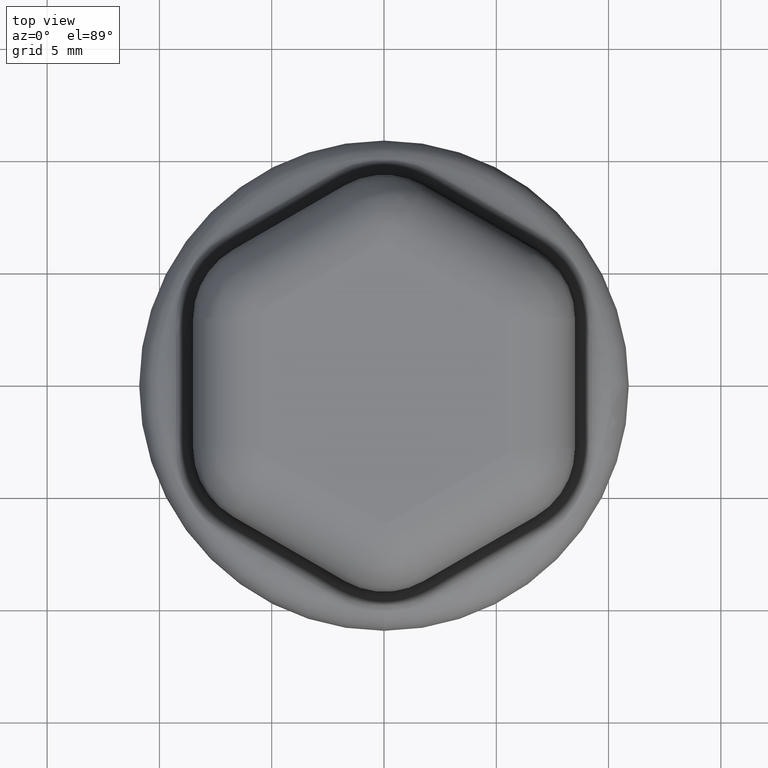
[diagram: clean part render]
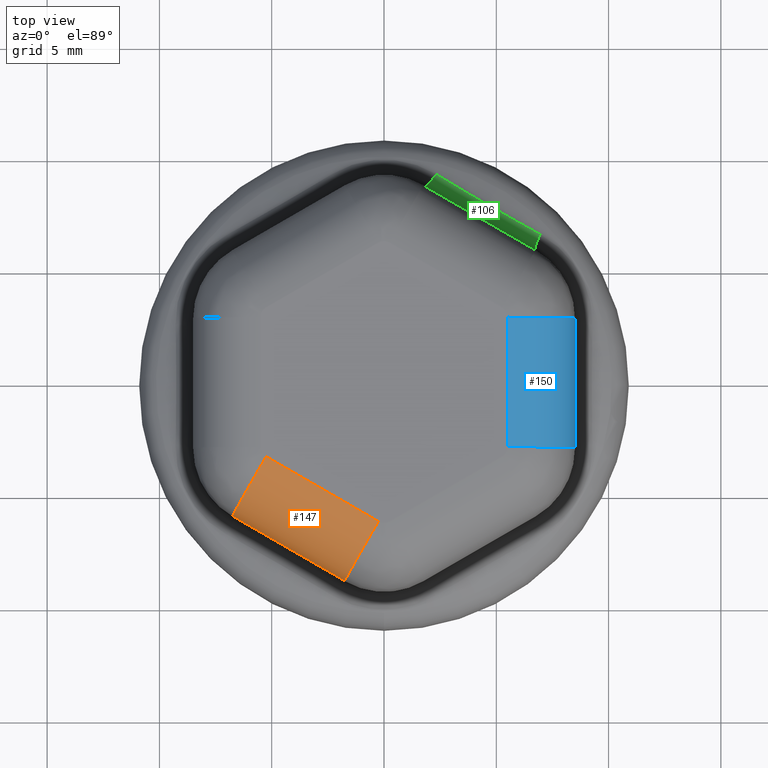
[diagram: same view with three faces highlighted in distinct colors, each labeled with its STEP entity id]
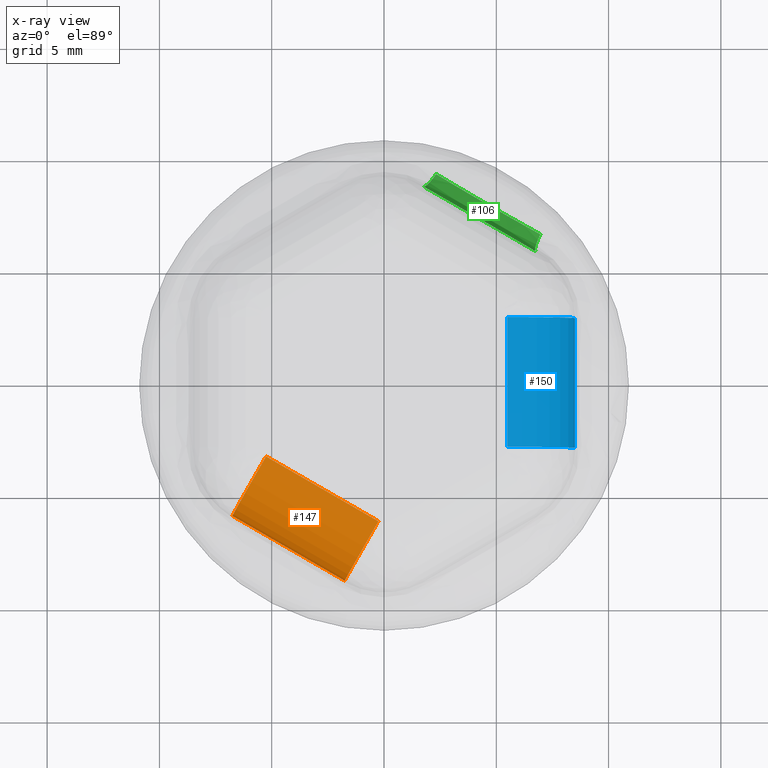
[diagram: x-ray of the same camera — body ghosted, the three highlighted faces saturated]
A machine part, top view with three faces highlighted in distinct colors.
The next image is the same camera in x-ray (body ghosted, the three faces saturated) — at least one of them is partly hidden behind the body in this view.
Their STEP definitions:

[orange] entity #147 — the highlighted cylindrical surface (partial cylindrical patch) has radius 3 mm, axis along (-0.866, 0.5, 0).
#147 = ADVANCED_FACE( '', ( #306 ), #307, .T. );
#306 = FACE_OUTER_BOUND( '', #2748, .T. );
#307 = CYLINDRICAL_SURFACE( '', #2749, 3.00000000000000 );
#2748 = EDGE_LOOP( '', ( #3304, #3305, #3306, #3307 ) );
#2749 = AXIS2_PLACEMENT_3D( '', #3308, #3309, #3310 );
#3304 = ORIENTED_EDGE( '', *, *, #3480, .F. );
#3305 = ORIENTED_EDGE( '', *, *, #3484, .T. );
#3306 = ORIENTED_EDGE( '', *, *, #3349, .F. );
#3307 = ORIENTED_EDGE( '', *, *, #3488, .T. );
#3308 = CARTESIAN_POINT( '', ( 9.99999999999999, -12.1243556529821, 7.50000000000000 ) );
#3309 = DIRECTION( '', ( -0.866025403784439, 0.500000000000000, 0.000000000000000 ) );
#3310 = DIRECTION( '', ( 0.500000000000000, 0.866025403784439, 0.000000000000000 ) );
#3349 = EDGE_CURVE( '', #3521, #3524, #3525, .T. );
#3480 = EDGE_CURVE( '', #3726, #3738, #3740, .F. );
#3484 = EDGE_CURVE( '', #3726, #3524, #3745, .T. );
#3488 = EDGE_CURVE( '', #3521, #3738, #3749, .T. );
#3521 = VERTEX_POINT( '', #3795 );
#3524 = VERTEX_POINT( '', #3798 );
#3525 = LINE( '', #3799, #3800 );
#3726 = VERTEX_POINT( '', #5257 );
#3738 = VERTEX_POINT( '', #5295 );
#3740 = LINE( '', #5298, #5299 );
#3745 = CIRCLE( '', #5339, 3.00000000000000 );
#3749 = CIRCLE( '', #5343, 3.00000000000000 );
#3795 = CARTESIAN_POINT( '', ( -5.25000000000000, -3.31976404784035, 10.5000000000000 ) );
#3798 = CARTESIAN_POINT( '', ( -0.250000000000004, -6.20651539378848, 10.5000000000000 ) );
#3799 = CARTESIAN_POINT( '', ( 9.99999999999999, -12.1243556529821, 10.5000000000000 ) );
#3800 = VECTOR( '', #5398, 1000.00000000000 );
#5257 = CARTESIAN_POINT( '', ( -1.75000000000000, -8.80459160514179, 7.50000000000000 ) );
#5295 = CARTESIAN_POINT( '', ( -6.75000000000000, -5.91784025919367, 7.50000000000000 ) );
#5298 = CARTESIAN_POINT( '', ( -8.50000000000000, -4.90747728811182, 7.50000000000000 ) );
#5299 = VECTOR( '', #5572, 1000.00000000000 );
#5339 = AXIS2_PLACEMENT_3D( '', #5575, #5576, #5577 );
#5343 = AXIS2_PLACEMENT_3D( '', #5587, #5588, #5589 );
#5398 = DIRECTION( '', ( 0.866025403784439, -0.500000000000000, 0.000000000000000 ) );
#5572 = DIRECTION( '', ( 0.866025403784439, -0.500000000000000, 0.000000000000000 ) );
#5575 = CARTESIAN_POINT( '', ( -0.250000000000003, -6.20651539378848, 7.50000000000000 ) );
#5576 = DIRECTION( '', ( -0.866025403784439, 0.500000000000000, 1.11548880993757E-017 ) );
#5577 = DIRECTION( '', ( -0.500000000000000, -0.866025403784439, 0.000000000000000 ) );
#5587 = CARTESIAN_POINT( '', ( -5.25000000000000, -3.31976404784035, 7.50000000000000 ) );
#5588 = DIRECTION( '', ( 0.866025403784439, -0.500000000000000, 0.000000000000000 ) );
#5589 = DIRECTION( '', ( 0.500000000000000, 0.866025403784438, 0.000000000000000 ) );

[blue] entity #150 — the highlighted cylindrical surface (partial cylindrical patch) has radius 3 mm, axis along (-0, -1, 0).
#150 = ADVANCED_FACE( '', ( #312 ), #313, .T. );
#312 = FACE_OUTER_BOUND( '', #2798, .T. );
#313 = CYLINDRICAL_SURFACE( '', #2799, 3.00000000000000 );
#2798 = EDGE_LOOP( '', ( #3319, #3320, #3321, #3322 ) );
#2799 = AXIS2_PLACEMENT_3D( '', #3323, #3324, #3325 );
#3319 = ORIENTED_EDGE( '', *, *, #3448, .F. );
#3320 = ORIENTED_EDGE( '', *, *, #3518, .T. );
#3321 = ORIENTED_EDGE( '', *, *, #3353, .F. );
#3322 = ORIENTED_EDGE( '', *, *, #3517, .T. );
#3323 = CARTESIAN_POINT( '', ( 5.49999999999999, -14.7224318643355, 7.50000000000000 ) );
#3324 = DIRECTION( '', ( -3.88578058618805E-016, -1.00000000000000, 0.000000000000000 ) );
#3325 = DIRECTION( '', ( -1.00000000000000, 3.88578058618805E-016, 0.000000000000000 ) );
#3353 = EDGE_CURVE( '', #3530, #3532, #3533, .T. );
#3448 = EDGE_CURVE( '', #3682, #3690, #3692, .F. );
#3517 = EDGE_CURVE( '', #3530, #3690, #3791, .T. );
#3518 = EDGE_CURVE( '', #3682, #3532, #3792, .T. );
#3530 = VERTEX_POINT( '', #3806 );
#3532 = VERTEX_POINT( '', #3808 );
#3533 = LINE( '', #3809, #3810 );
#3682 = VERTEX_POINT( '', #5033 );
#3690 = VERTEX_POINT( '', #5055 );
#3692 = LINE( '', #5058, #5059 );
#3791 = CIRCLE( '', #5391, 3.00000000000000 );
#3792 = CIRCLE( '', #5392, 3.00000000000000 );
#3806 = CARTESIAN_POINT( '', ( 5.50000000000000, -2.88675134594813, 10.5000000000000 ) );
#3808 = CARTESIAN_POINT( '', ( 5.50000000000000, 2.88675134594813, 10.5000000000000 ) );
#3809 = CARTESIAN_POINT( '', ( 5.49999999999999, -14.7224318643355, 10.5000000000000 ) );
#3810 = VECTOR( '', #5406, 1000.00000000000 );
#5033 = CARTESIAN_POINT( '', ( 8.50000000000000, 2.88675134594813, 7.50000000000000 ) );
#5055 = CARTESIAN_POINT( '', ( 8.49999999999999, -2.88675134594813, 7.50000000000000 ) );
#5058 = CARTESIAN_POINT( '', ( 8.49999999999999, -4.90747728811182, 7.50000000000000 ) );
#5059 = VECTOR( '', #5524, 1000.00000000000 );
#5391 = AXIS2_PLACEMENT_3D( '', #5662, #5663, #5664 );
#5392 = AXIS2_PLACEMENT_3D( '', #5665, #5666, #5667 );
#5406 = DIRECTION( '', ( 3.88578058618805E-016, 1.00000000000000, 0.000000000000000 ) );
#5524 = DIRECTION( '', ( 3.88578058618805E-016, 1.00000000000000, 0.000000000000000 ) );
#5662 = CARTESIAN_POINT( '', ( 5.50000000000000, -2.88675134594813, 7.50000000000000 ) );
#5663 = DIRECTION( '', ( 4.33680868994202E-016, 1.00000000000000, 0.000000000000000 ) );
#5664 = DIRECTION( '', ( -1.00000000000000, 4.33680868994202E-016, 0.000000000000000 ) );
#5665 = CARTESIAN_POINT( '', ( 5.50000000000000, 2.88675134594813, 7.50000000000000 ) );
#5666 = DIRECTION( '', ( -4.33680868994202E-016, -1.00000000000000, 1.25386064087711E-031 ) );
#5667 = DIRECTION( '', ( 1.00000000000000, -4.33680868994202E-016, 0.000000000000000 ) );

[green] entity #106 — the highlighted face is a freeform B-spline surface patch.
#106 = ADVANCED_FACE( '', ( #220 ), #221, .F. );
#220 = FACE_OUTER_BOUND( '', #1598, .T. );
#221 = ( B_SPLINE_SURFACE( 3, 2, ( ( #1600, #1601, #1602 ), ( #1603, #1604, #1605 ), ( #1606, #1607, #1608 ), ( #1609, #1610, #1611 ), ( #1612, #1613, #1614 ), ( #1615, #1616, #1617 ), ( #1618, #1619, #1620 ), ( #1621, #1622, #1623 ), ( #1624, #1625, #1626 ), ( #1627, #1628, #1629 ), ( #1630, #1631, #1632 ), ( #1633, #1634, #1635 ), ( #1636, #1637, #1638 ), ( #1639, #1640, #1641 ), ( #1642, #1643, #1644 ), ( #1645, #1646, #1647 ), ( #1648, #1649, #1650 ), ( #1651, #1652, #1653 ) ), .UNSPECIFIED., .F., .F., .F. )B_SPLINE_SURFACE_WITH_KNOTS( ( 4, 2, 2, 2, 2, 2, 2, 2, 4 ), ( 3, 3 ), ( -1.73472347597681E-018, 0.000721687836487030, 0.00144337567297406, 0.00216506350946109, 0.00288675134594813, 0.00360843918243516, 0.00433012701892219, 0.00505181485540922, 0.00577350269189625 ), ( 0.000000000000000, 1.00000000000000 ), .UNSPECIFIED. )RATIONAL_B_SPLINE_SURFACE( ( ( 1.00000000000000, 0.860344251278306, 1.00000000000000 ), ( 1.00000000000000, 0.861239132741734, 1.00000000000000 ), ( 1.00000000000000, 0.862046268298062, 1.00000000000000 ), ( 1.00000000000000, 0.863455268893499, 1.00000000000000 ), ( 1.00000000000000, 0.864056970409328, 1.00000000000000 ), ( 1.00000000000000, 0.865030453236678, 1.00000000000000 ), ( 1.00000000000000, 0.865402157081139, 1.00000000000000 ), ( 1.00000000000000, 0.865899654246989, 1.00000000000000 ), ( 1.00000000000000, 0.866025403784491, 1.00000000000000 ), ( 1.00000000000000, 0.866025403784385, 1.00000000000000 ), ( 1.00000000000000, 0.865899654247015, 1.00000000000000 ), ( 1.00000000000000, 0.865402157081112, 1.00000000000000 ), ( 1.00000000000000, 0.865030453236718, 1.00000000000000 ), ( 1.00000000000000, 0.864056970409288, 1.00000000000000 ), ( 1.00000000000000, 0.863455268893526, 1.00000000000000 ), ( 1.00000000000000, 0.862046268298035, 1.00000000000000 ), ( 1.00000000000000, 0.861239132741754, 1.00000000000000 ), ( 1.00000000000000, 0.860344251278307, 1.00000000000000 ) ) )BOUNDED_SURFACE(  )REPRESENTATION_ITEM( '' )GEOMETRIC_REPRESENTATION_ITEM(  )SURFACE(  ) );
#1598 = EDGE_LOOP( '', ( #3042, #3043, #3044, #3045 ) );
#1600 = CARTESIAN_POINT( '', ( 6.75000000000000, 5.91784025919367, 4.68194201974692 ) );
#1601 = CARTESIAN_POINT( '', ( 6.62831257506006, 5.98809652673973, 3.80444151934666 ) );
#1602 = CARTESIAN_POINT( '', ( 6.95956748090783, 6.69684693090917, 3.38290391407027 ) );
#1603 = CARTESIAN_POINT( '', ( 6.54166646876625, 6.03812167953269, 4.72046290361904 ) );
#1604 = CARTESIAN_POINT( '', ( 6.42959244386703, 6.10282764797644, 3.84478777944290 ) );
#1605 = CARTESIAN_POINT( '', ( 6.76278092102058, 6.80512802303914, 3.42142494317130 ) );
#1606 = CARTESIAN_POINT( '', ( 6.33333333333333, 6.15840287135601, 4.75453521217578 ) );
#1607 = CARTESIAN_POINT( '', ( 6.23105970196685, 6.21745057995642, 3.88049809799550 ) );
#1608 = CARTESIAN_POINT( '', ( 6.56662040356177, 6.91356160559172, 3.45549710641462 ) );
#1609 = CARTESIAN_POINT( '', ( 5.91666666666667, 6.39896548351835, 4.81331401323318 ) );
#1610 = CARTESIAN_POINT( '', ( 5.83429238162701, 6.44652429916033, 3.94212710999923 ) );
#1611 = CARTESIAN_POINT( '', ( 6.17548168049871, 7.13096361565866, 3.51427590764102 ) );
#1612 = CARTESIAN_POINT( '', ( 5.70833333333334, 6.51924678959952, 4.83801954244026 ) );
#1613 = CARTESIAN_POINT( '', ( 5.63605819966609, 6.56097485747782, 3.96804463561771 ) );
#1614 = CARTESIAN_POINT( '', ( 5.98050444803590, 7.23993212550030, 3.53898143670323 ) );
#1615 = CARTESIAN_POINT( '', ( 5.29166666666666, 6.75980940176187, 4.87770208193355 ) );
#1616 = CARTESIAN_POINT( '', ( 5.23979945601670, 6.78975494979294, 4.00968416831522 ) );
#1617 = CARTESIAN_POINT( '', ( 5.59161119076650, 7.45862884864298, 3.57866397631727 ) );
#1618 = CARTESIAN_POINT( '', ( 5.08333333333336, 6.88009070784303, 4.89267837564956 ) );
#1619 = CARTESIAN_POINT( '', ( 5.04177473605776, 6.90408457516719, 4.02540534637940 ) );
#1620 = CARTESIAN_POINT( '', ( 5.39769496191075, 7.56835768970402, 3.59364026994141 ) );
#1621 = CARTESIAN_POINT( '', ( 4.66666666666665, 7.12065332000540, 4.91267325751608 ) );
#1622 = CARTESIAN_POINT( '', ( 4.64583344240242, 7.13268138764248, 4.04639651450284 ) );
#1623 = CARTESIAN_POINT( '', ( 5.01074375772933, 7.78878037945622, 3.61363515187091 ) );
#1624 = CARTESIAN_POINT( '', ( 4.45833333333328, 7.24093462608659, 4.91769145362398 ) );
#1625 = CARTESIAN_POINT( '', ( 4.44791666670149, 7.24694869137065, 4.05166604983964 ) );
#1626 = CARTESIAN_POINT( '', ( 4.81770833341145, 7.89947477683585, 3.61865334794733 ) );
#1627 = CARTESIAN_POINT( '', ( 4.04166666666672, 7.48149723824887, 4.91769145362398 ) );
#1628 = CARTESIAN_POINT( '', ( 4.05208333329851, 7.47548317296480, 4.05166604983944 ) );
#1629 = CARTESIAN_POINT( '', ( 4.43229166658855, 8.12199519317626, 3.61865334794731 ) );
#1630 = CARTESIAN_POINT( '', ( 3.83333333333328, 7.60177854433010, 4.91267325751608 ) );
#1631 = CARTESIAN_POINT( '', ( 3.85416655759753, 7.58975047669297, 4.04639651450284 ) );
#1632 = CARTESIAN_POINT( '', ( 4.23990979424220, 8.23382157577596, 3.61363515187094 ) );
#1633 = CARTESIAN_POINT( '', ( 3.41666666666673, 7.84234115649238, 4.89267837564956 ) );
#1634 = CARTESIAN_POINT( '', ( 3.45822526394229, 7.81834728916827, 4.02540534637940 ) );
#1635 = CARTESIAN_POINT( '', ( 3.85554254325564, 8.45871980374605, 3.59364026994138 ) );
#1636 = CARTESIAN_POINT( '', ( 3.20833333333339, 7.96262246257356, 4.87770208193366 ) );
#1637 = CARTESIAN_POINT( '', ( 3.26020054398350, 7.93267691454270, 4.00968416831523 ) );
#1638 = CARTESIAN_POINT( '', ( 3.66355646494096, 8.57179176361030, 3.57866397631746 ) );
#1639 = CARTESIAN_POINT( '', ( 2.79166666666662, 8.20318507473596, 4.83801954244015 ) );
#1640 = CARTESIAN_POINT( '', ( 2.86394180033371, 8.16145700685745, 3.96804463561770 ) );
#1641 = CARTESIAN_POINT( '', ( 3.27971291834048, 8.79923484219539, 3.53898143670303 ) );
#1642 = CARTESIAN_POINT( '', ( 2.58333333333329, 8.32346638081713, 4.81331401323308 ) );
#1643 = CARTESIAN_POINT( '', ( 2.66570761837304, 8.27590756517521, 3.94212710999934 ) );
#1644 = CARTESIAN_POINT( '', ( 3.08785480437366, 8.91360582374679, 3.51427590764092 ) );
#1645 = CARTESIAN_POINT( '', ( 2.16666666666672, 8.56402899297942, 4.75453521217588 ) );
#1646 = CARTESIAN_POINT( '', ( 2.26894029803311, 8.50498128437896, 3.88049809799539 ) );
#1647 = CARTESIAN_POINT( '', ( 2.70400977929020, 9.14364088928942, 3.45549710641472 ) );
#1648 = CARTESIAN_POINT( '', ( 1.95833353123366, 8.68431018480281, 4.72046290361935 ) );
#1649 = CARTESIAN_POINT( '', ( 2.07040755613237, 8.61960421635776, 3.84478777944238 ) );
#1650 = CARTESIAN_POINT( '', ( 2.51202328344688, 9.25930408935200, 3.42142494317138 ) );
#1651 = CARTESIAN_POINT( '', ( 1.75000000000000, 8.80459160514179, 4.68194201974692 ) );
#1652 = CARTESIAN_POINT( '', ( 1.87168742493994, 8.73433533759573, 3.80444151934667 ) );
#1653 = CARTESIAN_POINT( '', ( 2.31985582696928, 9.37558570327284, 3.38290391407027 ) );
#3042 = ORIENTED_EDGE( '', *, *, #3445, .T. );
#3043 = ORIENTED_EDGE( '', *, *, #3446, .F. );
#3044 = ORIENTED_EDGE( '', *, *, #3425, .F. );
#3045 = ORIENTED_EDGE( '', *, *, #3432, .F. );
#3425 = EDGE_CURVE( '', #3650, #3651, #3652, .T. );
#3432 = EDGE_CURVE( '', #3663, #3650, #3664, .T. );
#3445 = EDGE_CURVE( '', #3663, #3687, #3688, .T. );
#3446 = EDGE_CURVE( '', #3651, #3687, #3689, .T. );
#3650 = VERTEX_POINT( '', #4638 );
#3651 = VERTEX_POINT( '', #4639 );
#3652 = CIRCLE( '', #4640, 1.50000000000000 );
#3663 = VERTEX_POINT( '', #4749 );
#3664 = B_SPLINE_CURVE_WITH_KNOTS( '', 3, ( #4750, #4751, #4752, #4753, #4754, #4755, #4756, #4757, #4758, #4759, #4760, #4761, #4762, #4763, #4764, #4765, #4766, #4767, #4768, #4769, #4770, #4771 ), .UNSPECIFIED., .F., .F., ( 4, 2, 2, 2, 2, 2, 2, 2, 2, 2, 4 ), ( 0.000000000000000, 0.000671673827979810, 0.00134334765595962, 0.00201502148393943, 0.00268669531191924, 0.00285461376891419, 0.00302253222590914, 0.00335836913989904, 0.00403004296787883, 0.00470171679585862, 0.00537339062383842 ), .UNSPECIFIED. );
#3687 = VERTEX_POINT( '', #5040 );
#3688 = CIRCLE( '', #5041, 1.50000000000000 );
#3689 = B_SPLINE_CURVE_WITH_KNOTS( '', 3, ( #5042, #5043, #5044, #5045, #5046, #5047, #5048, #5049, #5050, #5051, #5052, #5053, #5054 ), .UNSPECIFIED., .F., .F., ( 4, 2, 1, 1, 1, 1, 1, 2, 4 ), ( 0.000000000000000, 0.000721687836487031, 0.00144337567297406, 0.00216506350946109, 0.00288675134594812, 0.00360843918243516, 0.00433012701892219, 0.00505181485540922, 0.00577350269189625 ), .UNSPECIFIED. );
#4638 = CARTESIAN_POINT( '', ( 6.95956748090783, 6.69684693090917, 3.38290391407026 ) );
#4639 = CARTESIAN_POINT( '', ( 6.75000000000000, 5.91784025919366, 4.68194201974692 ) );
#4640 = AXIS2_PLACEMENT_3D( '', #5506, #5507, #5508 );
#4749 = CARTESIAN_POINT( '', ( 2.31985582696928, 9.37558570327284, 3.38290391407027 ) );
#4750 = CARTESIAN_POINT( '', ( 2.31985582696928, 9.37558570327284, 3.38290391407027 ) );
#4751 = CARTESIAN_POINT( '', ( 2.50947736306407, 9.26084464042194, 3.42091459921001 ) );
#4752 = CARTESIAN_POINT( '', ( 2.69959185251737, 9.14630053369149, 3.45472796259253 ) );
#4753 = CARTESIAN_POINT( '', ( 3.08094235060570, 8.91773673217565, 3.51330730042607 ) );
#4754 = CARTESIAN_POINT( '', ( 3.27217880714175, 8.80371754351357, 3.53807161299007 ) );
#4755 = CARTESIAN_POINT( '', ( 3.65588992804239, 8.57631678718703, 3.57799723915431 ) );
#4756 = CARTESIAN_POINT( '', ( 3.84836501025050, 8.46293569373526, 3.59315701590216 ) );
#4757 = CARTESIAN_POINT( '', ( 4.23463701683028, 8.23689103737797, 3.61346725215437 ) );
#4758 = CARTESIAN_POINT( '', ( 4.42843422849721, 8.12422779524862, 3.61861662026514 ) );
#4759 = CARTESIAN_POINT( '', ( 4.67153165224947, 7.98386858253337, 3.61866228475209 ) );
#4760 = CARTESIAN_POINT( '', ( 4.72019356513874, 7.95582010956798, 3.61835236742789 ) );
#4761 = CARTESIAN_POINT( '', ( 4.81760237963427, 7.89976992909328, 3.61709312961512 ) );
#4762 = CARTESIAN_POINT( '', ( 4.86635436491115, 7.87176530665233, 3.61614367466122 ) );
#4763 = CARTESIAN_POINT( '', ( 5.01270580661397, 7.78783961371040, 3.61233635359327 ) );
#4764 = CARTESIAN_POINT( '', ( 5.11024528907168, 7.73209596982430, 3.60852347131153 ) );
#4765 = CARTESIAN_POINT( '', ( 5.40277768335140, 7.56547142954541, 3.59331627743378 ) );
#4766 = CARTESIAN_POINT( '', ( 5.59768490655717, 7.45519861760435, 3.57814824316339 ) );
#4767 = CARTESIAN_POINT( '', ( 5.98725190135542, 7.23615277624283, 3.53818542073230 ) );
#4768 = CARTESIAN_POINT( '', ( 6.18191149742596, 7.12737910953949, 3.51339224184868 ) );
#4769 = CARTESIAN_POINT( '', ( 6.57095474654799, 6.91116349622521, 3.45476085906113 ) );
#4770 = CARTESIAN_POINT( '', ( 6.76533821628087, 6.80372088083285, 3.42092435174337 ) );
#4771 = CARTESIAN_POINT( '', ( 6.95956748090783, 6.69684693090917, 3.38290391407027 ) );
#5040 = CARTESIAN_POINT( '', ( 1.75000000000000, 8.80459160514179, 4.68194201974693 ) );
#5041 = AXIS2_PLACEMENT_3D( '', #5520, #5521, #5522 );
#5042 = CARTESIAN_POINT( '', ( 6.75000000000000, 5.91784025919366, 4.68194201974692 ) );
#5043 = CARTESIAN_POINT( '', ( 6.54166666666666, 6.03812156527484, 4.72046286670701 ) );
#5044 = CARTESIAN_POINT( '', ( 6.33333333333333, 6.15840287135601, 4.75453521204371 ) );
#5045 = CARTESIAN_POINT( '', ( 5.91666666666667, 6.39896548351835, 4.81331401336525 ) );
#5046 = CARTESIAN_POINT( '', ( 5.50000000000000, 6.63952809568070, 4.86272578845615 ) );
#5047 = CARTESIAN_POINT( '', ( 4.87500000000000, 7.00037201392421, 4.90765506150690 ) );
#5048 = CARTESIAN_POINT( '', ( 4.25000000000000, 7.36121593216773, 4.92270964968252 ) );
#5049 = CARTESIAN_POINT( '', ( 3.62500000000000, 7.72205985041125, 4.90765466917222 ) );
#5050 = CARTESIAN_POINT( '', ( 3.00000000000000, 8.08290376865476, 4.86272507132602 ) );
#5051 = CARTESIAN_POINT( '', ( 2.58333333333334, 8.32346638081710, 4.81331401336525 ) );
#5052 = CARTESIAN_POINT( '', ( 2.16666666666667, 8.56402899297945, 4.75453521204370 ) );
#5053 = CARTESIAN_POINT( '', ( 1.95833333333334, 8.68431029906062, 4.72046286670701 ) );
#5054 = CARTESIAN_POINT( '', ( 1.75000000000000, 8.80459160514179, 4.68194201974692 ) );
#5506 = CARTESIAN_POINT( '', ( 7.50000000000000, 7.21687836487032, 4.68194201974692 ) );
#5507 = DIRECTION( '', ( -0.855131568824353, 0.493710441453288, 0.158113883008418 ) );
#5508 = DIRECTION( '', ( -0.500000000000000, -0.866025403784439, 8.77708367144170E-018 ) );
#5520 = CARTESIAN_POINT( '', ( 2.50000000000000, 10.1036297108185, 4.68194201974692 ) );
#5521 = DIRECTION( '', ( -0.855131568824354, 0.493710441453288, -0.158113883008418 ) );
#5522 = DIRECTION( '', ( -0.500000000000000, -0.866025403784439, -8.77708367144170E-018 ) );